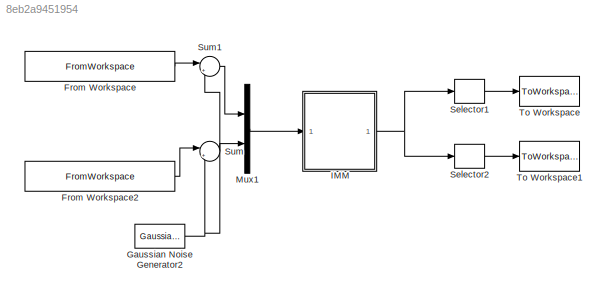
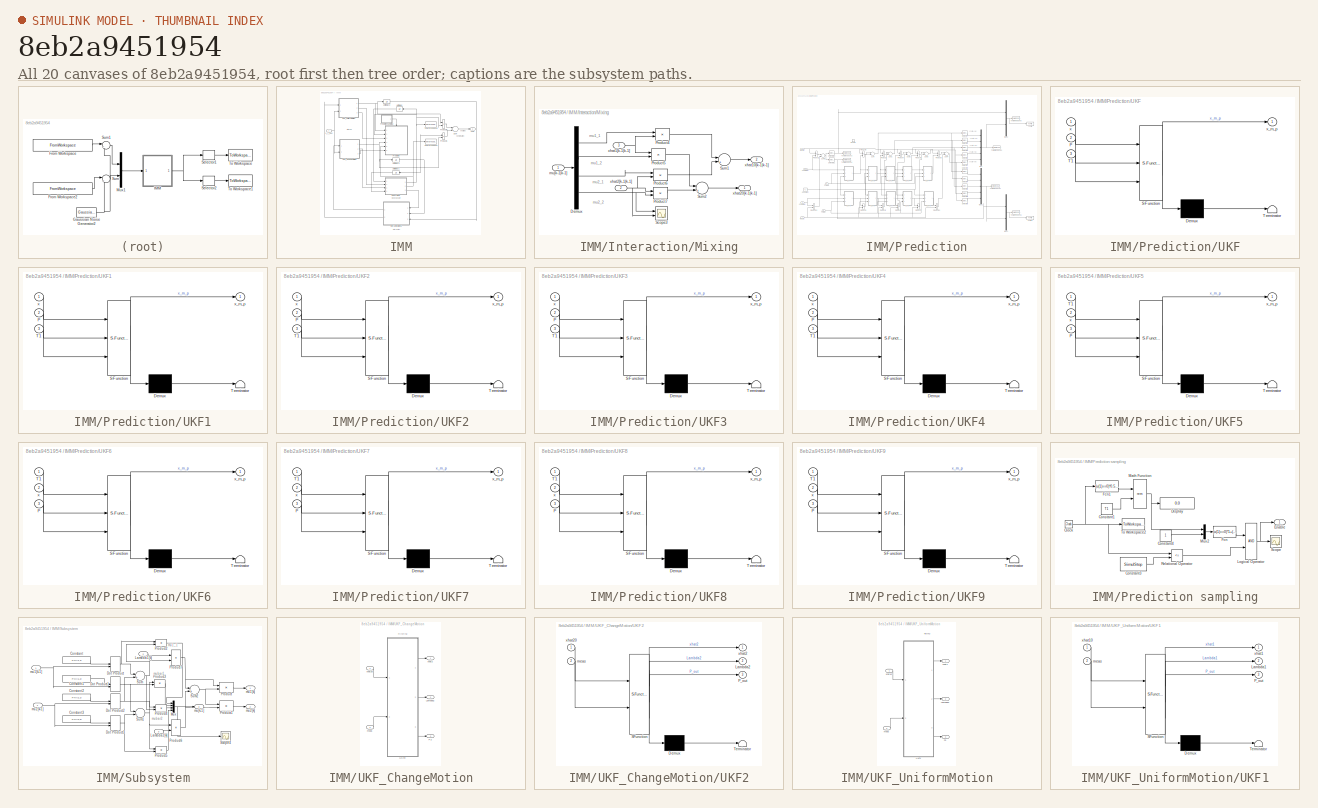
[diagram: thumbnail index - all 20 canvases of the model, root first then tree order]
MODEL slx_8eb2a9451954
KIND model
BLOCK [FromWorkspace] From Workspace
  SampleTime = 0
  VariableName = [obv_traj1(:,1),obv_traj1(:,2)]
BLOCK [FromWorkspace] From Workspace2
  SampleTime = 0
  VariableName = [obv_traj1(:,1),obv_traj1(:,3)]
BLOCK [Reference] Gaussian Noise Generator2  REF=commnoisgen2/Gaussian Noise
Generator
  Ports = [0, 1]
  SourceBlock = commnoisgen2/Gaussian Noise\nGenerator
  SourceType = Gaussian Noise Generator
  Ts = T
  d = noise
  frameBased = off
  m = 0
  orient = off
  outDataType = double
  s = 0
  sampPerFrame = 1
BLOCK [SubSystem] IMM
  FunctionWithSeparateData = off
  MaskHideContents = off
  MinAlgLoopOccurrences = off
  Opaque = off
  Ports = [1, 1]
  PropExecContextOutsideSubsystem = off
  RTWSystemCode = Auto
  RequestExecContextInheritance = off
BLOCK [SubSystem] IMM/Interaction//Mixing
  FunctionWithSeparateData = off
  MaskHideContents = off
  MinAlgLoopOccurrences = off
  Opaque = off
  Ports = [3, 2]
  PropExecContextOutsideSubsystem = off
  RTWSystemCode = Auto
  RequestExecContextInheritance = off
BLOCK [Demux] IMM/Interaction//Mixing/Demux
  Ports = [1, 4]
BLOCK [Product] IMM/Interaction//Mixing/Product4
  InputSameDT = off
  Ports = [2, 1]
  RndMeth = Floor
BLOCK [Product] IMM/Interaction//Mixing/Product5
  InputSameDT = off
  Ports = [2, 1]
  RndMeth = Floor
BLOCK [Product] IMM/Interaction//Mixing/Product6
  InputSameDT = off
  Ports = [2, 1]
  RndMeth = Floor
BLOCK [Product] IMM/Interaction//Mixing/Product7
  InputSameDT = off
  Ports = [2, 1]
  RndMeth = Floor
BLOCK [Scope] IMM/Interaction//Mixing/Scope3
  DataFormat = StructureWithTime
  Floating = off
  NumInputPorts = 2
  Ports = [2]
  SampleTime = 0
  SaveName = ScopeData7
  ShowLegends = off
  TimeRange = 10
  YMax = 5~5
  YMin = -5~-5
BLOCK [Sum] IMM/Interaction//Mixing/Sum1
  IconShape = round
  InputSameDT = off
  Inputs = |++|
  OutDataTypeStr = Inherit: Inherit via internal rule
  Ports = [2, 1]
BLOCK [Sum] IMM/Interaction//Mixing/Sum2
  IconShape = round
  InputSameDT = off
  Inputs = |++|
  OutDataTypeStr = Inherit: Inherit via internal rule
  Ports = [2, 1]
BLOCK [Inport] IMM/Interaction//Mixing/mu[k-1|k-1]
  IconDisplay = Port number
BLOCK [Outport] IMM/Interaction//Mixing/xhat10[k-1|k-1]
  IconDisplay = Port number
  Port = 2
BLOCK [Inport] IMM/Interaction//Mixing/xhat1[k-1|k-1]
  IconDisplay = Port number
  Port = 3
BLOCK [Outport] IMM/Interaction//Mixing/xhat20[k-1|k-1]
  IconDisplay = Port number
BLOCK [Inport] IMM/Interaction//Mixing/xhat2[k-1|k-1]
  IconDisplay = Port number
  Port = 2
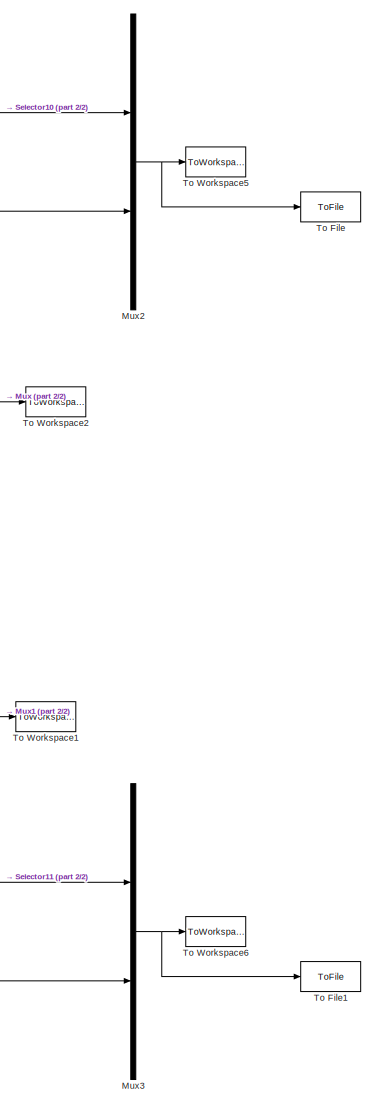
[diagram: IMM/Prediction - part 1/2, right side, full height]
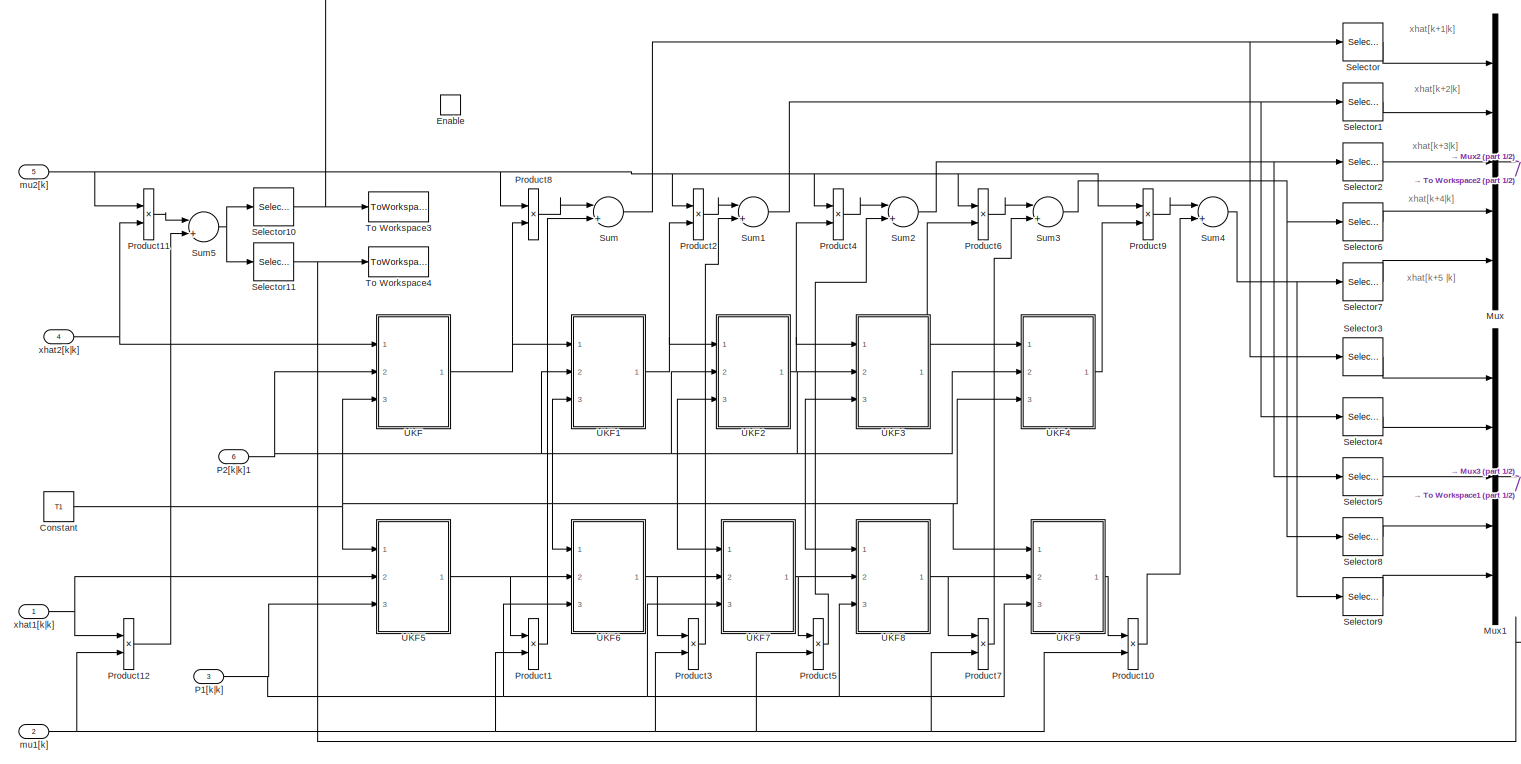
[diagram: IMM/Prediction - part 2/2, full width, middle band]
BLOCK [SubSystem] IMM/Prediction
  FunctionWithSeparateData = off
  MaskHideContents = off
  MinAlgLoopOccurrences = off
  Opaque = off
  Ports = [6, 0, 1]
  PropExecContextOutsideSubsystem = off
  RTWSystemCode = Auto
  RequestExecContextInheritance = off
BLOCK [SubSystem] IMM/Prediction sampling
  FunctionWithSeparateData = off
  MaskHideContents = off
  MinAlgLoopOccurrences = off
  Opaque = off
  Ports = [0, 1]
  PropExecContextOutsideSubsystem = off
  RTWSystemCode = Auto
  RequestExecContextInheritance = off
BLOCK [Clock] IMM/Prediction sampling/Clock
BLOCK [Constant] IMM/Prediction sampling/Constant1
  Value = T1
BLOCK [Constant] IMM/Prediction sampling/Constant3
  Value = SimulStop
BLOCK [Constant] IMM/Prediction sampling/Constant4
BLOCK [Display] IMM/Prediction sampling/Display
  Decimation = 1
  Lockdown = off
  Ports = [1]
BLOCK [Outport] IMM/Prediction sampling/Enable
  IconDisplay = Port number
BLOCK [Fcn] IMM/Prediction sampling/Fcn
  Expr = (u(1)==0)*1+(!u(1)==0)*0
BLOCK [Fcn] IMM/Prediction sampling/Fcn1
  Expr = (u(1)==0)*0.5+(!u(1)==0)*u(1)
BLOCK [Logic] IMM/Prediction sampling/Logical Operator
  AllPortsSameDT = off
  OutDataTypeStr = boolean
  Ports = [2, 1]
BLOCK [Math] IMM/Prediction sampling/Math Function
  Operator = rem
  Ports = [2, 1]
BLOCK [Mux] IMM/Prediction sampling/Mux2
  DisplayOption = bar
  Inputs = 2
  Ports = [2, 1]
BLOCK [RelationalOperator] IMM/Prediction sampling/Relational Operator
  InputSameDT = off
  Operator = <=
  OutDataTypeStr = boolean
  Ports = [2, 1]
BLOCK [Scope] IMM/Prediction sampling/Scope
  DataFormat = StructureWithTime
  Floating = off
  NumInputPorts = 1
  Ports = [1]
  SampleTime = 0
  SaveName = ScopeData2
  ShowLegends = off
BLOCK [ToWorkspace] IMM/Prediction sampling/To Workspace2
  MaxDataPoints = inf
  Ports = [1]
  SampleTime = -1
  VariableName = time
BLOCK [Constant] IMM/Prediction/Constant
  Value = T1
BLOCK [EnablePort] IMM/Prediction/Enable
  Ports = []
BLOCK [Mux] IMM/Prediction/Mux
  DisplayOption = bar
  Inputs = 5
  Ports = [5, 1]
BLOCK [Mux] IMM/Prediction/Mux1
  DisplayOption = bar
  Inputs = 5
  Ports = [5, 1]
BLOCK [Mux] IMM/Prediction/Mux2
  DisplayOption = bar
  Inputs = 2
  Ports = [2, 1]
BLOCK [Mux] IMM/Prediction/Mux3
  DisplayOption = bar
  Inputs = 2
  Ports = [2, 1]
BLOCK [Inport] IMM/Prediction/P1[k|k]
  IconDisplay = Port number
  Port = 3
BLOCK [Inport] IMM/Prediction/P2[k|k]1
  IconDisplay = Port number
  Port = 6
BLOCK [Product] IMM/Prediction/Product1
  InputSameDT = off
  Ports = [2, 1]
  RndMeth = Floor
BLOCK [Product] IMM/Prediction/Product10
  InputSameDT = off
  Ports = [2, 1]
  RndMeth = Floor
BLOCK [Product] IMM/Prediction/Product11
  InputSameDT = off
  Ports = [2, 1]
  RndMeth = Floor
BLOCK [Product] IMM/Prediction/Product12
  InputSameDT = off
  Ports = [2, 1]
  RndMeth = Floor
BLOCK [Product] IMM/Prediction/Product2
  InputSameDT = off
  Ports = [2, 1]
  RndMeth = Floor
BLOCK [Product] IMM/Prediction/Product3
  InputSameDT = off
  Ports = [2, 1]
  RndMeth = Floor
BLOCK [Product] IMM/Prediction/Product4
  InputSameDT = off
  Ports = [2, 1]
  RndMeth = Floor
BLOCK [Product] IMM/Prediction/Product5
  InputSameDT = off
  Ports = [2, 1]
  RndMeth = Floor
BLOCK [Product] IMM/Prediction/Product6
  InputSameDT = off
  Ports = [2, 1]
  RndMeth = Floor
BLOCK [Product] IMM/Prediction/Product7
  InputSameDT = off
  Ports = [2, 1]
  RndMeth = Floor
BLOCK [Product] IMM/Prediction/Product8
  InputSameDT = off
  Ports = [2, 1]
  RndMeth = Floor
BLOCK [Product] IMM/Prediction/Product9
  InputSameDT = off
  Ports = [2, 1]
  RndMeth = Floor
BLOCK [Selector] IMM/Prediction/Selector
  IndexOptions = Index vector (dialog)
  Indices = [1]
  InputPortWidth = 5
  OutputSizes = 1
  Ports = [1, 1]
BLOCK [Selector] IMM/Prediction/Selector1
  IndexOptions = Index vector (dialog)
  Indices = [1]
  InputPortWidth = 5
  OutputSizes = 1
  Ports = [1, 1]
BLOCK [Selector] IMM/Prediction/Selector10
  IndexOptions = Index vector (dialog)
  Indices = [1]
  InputPortWidth = 5
  OutputSizes = 1
  Ports = [1, 1]
BLOCK [Selector] IMM/Prediction/Selector11
  IndexOptions = Index vector (dialog)
  Indices = [3]
  InputPortWidth = 5
  OutputSizes = 1
  Ports = [1, 1]
BLOCK [Selector] IMM/Prediction/Selector2
  IndexOptions = Index vector (dialog)
  Indices = [1]
  InputPortWidth = 5
  OutputSizes = 1
  Ports = [1, 1]
BLOCK [Selector] IMM/Prediction/Selector3
  IndexOptions = Index vector (dialog)
  Indices = [3]
  InputPortWidth = 5
  OutputSizes = 1
  Ports = [1, 1]
BLOCK [Selector] IMM/Prediction/Selector4
  IndexOptions = Index vector (dialog)
  Indices = [3]
  InputPortWidth = 5
  OutputSizes = 1
  Ports = [1, 1]
BLOCK [Selector] IMM/Prediction/Selector5
  IndexOptions = Index vector (dialog)
  Indices = [3]
  InputPortWidth = 5
  OutputSizes = 1
  Ports = [1, 1]
BLOCK [Selector] IMM/Prediction/Selector6
  IndexOptions = Index vector (dialog)
  Indices = [1]
  InputPortWidth = 5
  OutputSizes = 1
  Ports = [1, 1]
BLOCK [Selector] IMM/Prediction/Selector7
  IndexOptions = Index vector (dialog)
  Indices = [1]
  InputPortWidth = 5
  OutputSizes = 1
  Ports = [1, 1]
BLOCK [Selector] IMM/Prediction/Selector8
  IndexOptions = Index vector (dialog)
  Indices = [3]
  InputPortWidth = 5
  OutputSizes = 1
  Ports = [1, 1]
BLOCK [Selector] IMM/Prediction/Selector9
  IndexOptions = Index vector (dialog)
  Indices = [3]
  InputPortWidth = 5
  OutputSizes = 1
  Ports = [1, 1]
BLOCK [Sum] IMM/Prediction/Sum
  IconShape = round
  InputSameDT = off
  Inputs = |++|
  OutDataTypeStr = Inherit: Inherit via internal rule
  Ports = [2, 1]
BLOCK [Sum] IMM/Prediction/Sum1
  IconShape = round
  InputSameDT = off
  Inputs = |++|
  OutDataTypeStr = Inherit: Inherit via internal rule
  Ports = [2, 1]
BLOCK [Sum] IMM/Prediction/Sum2
  IconShape = round
  InputSameDT = off
  Inputs = |++|
  OutDataTypeStr = Inherit: Inherit via internal rule
  Ports = [2, 1]
BLOCK [Sum] IMM/Prediction/Sum3
  IconShape = round
  InputSameDT = off
  Inputs = |++|
  OutDataTypeStr = Inherit: Inherit via internal rule
  Ports = [2, 1]
BLOCK [Sum] IMM/Prediction/Sum4
  IconShape = round
  InputSameDT = off
  Inputs = |++|
  OutDataTypeStr = Inherit: Inherit via internal rule
  Ports = [2, 1]
BLOCK [Sum] IMM/Prediction/Sum5
  IconShape = round
  InputSameDT = off
  Inputs = |++|
  OutDataTypeStr = Inherit: Inherit via internal rule
  Ports = [2, 1]
BLOCK [ToFile] IMM/Prediction/To File
  Filename = x_pos_pre_imm.mat
  MatrixName = x_pos_pre_imm
  Ports = [1]
BLOCK [ToFile] IMM/Prediction/To File1
  Filename = y_pos_pre_imm.mat
  MatrixName = y_pos_pre_imm
  Ports = [1]
BLOCK [ToWorkspace] IMM/Prediction/To Workspace1
  MaxDataPoints = inf
  Ports = [1]
  SampleTime = -1
  VariableName = y_pos_pre
BLOCK [ToWorkspace] IMM/Prediction/To Workspace2
  MaxDataPoints = inf
  Ports = [1]
  SampleTime = -1
  VariableName = x_pos_pre
BLOCK [ToWorkspace] IMM/Prediction/To Workspace3
  MaxDataPoints = inf
  Ports = [1]
  SampleTime = -1
  VariableName = x_pos_est
BLOCK [ToWorkspace] IMM/Prediction/To Workspace4
  MaxDataPoints = inf
  Ports = [1]
  SampleTime = -1
  VariableName = y_pos_est
BLOCK [ToWorkspace] IMM/Prediction/To Workspace5
  MaxDataPoints = inf
  Ports = [1]
  SampleTime = -1
  VariableName = x_pos_pre1
BLOCK [ToWorkspace] IMM/Prediction/To Workspace6
  MaxDataPoints = inf
  Ports = [1]
  SampleTime = -1
  VariableName = x_pos_pre2
BLOCK [SubSystem] IMM/Prediction/UKF
  ErrorFcn = Stateflow.Translate.translate
  FunctionWithSeparateData = off
  MaskHideContents = off
  MinAlgLoopOccurrences = off
  Opaque = off
  PermitHierarchicalResolution = ExplicitOnly
  Ports = [3, 1]
  PropExecContextOutsideSubsystem = off
  RTWSystemCode = Auto
  RequestExecContextInheritance = off
  SFBlockType = MATLAB Function
  TreatAsAtomicUnit = on
BLOCK [Demux] IMM/Prediction/UKF/ Demux 
  Outputs = 1
  Ports = [1, 1]
BLOCK [S-Function] IMM/Prediction/UKF/ SFunction 
  EnableBusSupport = on
  FunctionName = sf_sfun
  PortCounts = [3 2]
  Ports = [3, 2]
  Tag = Stateflow S-Function IMM_UKF 8
BLOCK [Terminator] IMM/Prediction/UKF/ Terminator 
BLOCK [Inport] IMM/Prediction/UKF/P
  IconDisplay = Port number
  Port = 2
BLOCK [Inport] IMM/Prediction/UKF/T1
  IconDisplay = Port number
  Port = 3
BLOCK [Inport] IMM/Prediction/UKF/x
  IconDisplay = Port number
BLOCK [Outport] IMM/Prediction/UKF/x_m_p
  IconDisplay = Port number
BLOCK [SubSystem] IMM/Prediction/UKF1
  ErrorFcn = Stateflow.Translate.translate
  FunctionWithSeparateData = off
  MaskHideContents = off
  MinAlgLoopOccurrences = off
  Opaque = off
  PermitHierarchicalResolution = ExplicitOnly
  Ports = [3, 1]
  PropExecContextOutsideSubsystem = off
  RTWSystemCode = Auto
  RequestExecContextInheritance = off
  SFBlockType = MATLAB Function
  TreatAsAtomicUnit = on
BLOCK [Demux] IMM/Prediction/UKF1/ Demux 
  Outputs = 1
  Ports = [1, 1]
BLOCK [S-Function] IMM/Prediction/UKF1/ SFunction 
  EnableBusSupport = on
  FunctionName = sf_sfun
  PortCounts = [3 2]
  Ports = [3, 2]
  Tag = Stateflow S-Function IMM_UKF 9
BLOCK [Terminator] IMM/Prediction/UKF1/ Terminator 
BLOCK [Inport] IMM/Prediction/UKF1/P
  IconDisplay = Port number
  Port = 2
BLOCK [Inport] IMM/Prediction/UKF1/T1
  IconDisplay = Port number
  Port = 3
BLOCK [Inport] IMM/Prediction/UKF1/x
  IconDisplay = Port number
BLOCK [Outport] IMM/Prediction/UKF1/x_m_p
  IconDisplay = Port number
BLOCK [SubSystem] IMM/Prediction/UKF2
  ErrorFcn = Stateflow.Translate.translate
  FunctionWithSeparateData = off
  MaskHideContents = off
  MinAlgLoopOccurrences = off
  Opaque = off
  PermitHierarchicalResolution = ExplicitOnly
  Ports = [3, 1]
  PropExecContextOutsideSubsystem = off
  RTWSystemCode = Auto
  RequestExecContextInheritance = off
  SFBlockType = MATLAB Function
  TreatAsAtomicUnit = on
BLOCK [Demux] IMM/Prediction/UKF2/ Demux 
  Outputs = 1
  Ports = [1, 1]
BLOCK [S-Function] IMM/Prediction/UKF2/ SFunction 
  EnableBusSupport = on
  FunctionName = sf_sfun
  PortCounts = [3 2]
  Ports = [3, 2]
  Tag = Stateflow S-Function IMM_UKF 10
BLOCK [Terminator] IMM/Prediction/UKF2/ Terminator 
BLOCK [Inport] IMM/Prediction/UKF2/P
  IconDisplay = Port number
  Port = 2
BLOCK [Inport] IMM/Prediction/UKF2/T1
  IconDisplay = Port number
  Port = 3
BLOCK [Inport] IMM/Prediction/UKF2/x
  IconDisplay = Port number
BLOCK [Outport] IMM/Prediction/UKF2/x_m_p
  IconDisplay = Port number
BLOCK [SubSystem] IMM/Prediction/UKF3
  ErrorFcn = Stateflow.Translate.translate
  FunctionWithSeparateData = off
  MaskHideContents = off
  MinAlgLoopOccurrences = off
  Opaque = off
  PermitHierarchicalResolution = ExplicitOnly
  Ports = [3, 1]
  PropExecContextOutsideSubsystem = off
  RTWSystemCode = Auto
  RequestExecContextInheritance = off
  SFBlockType = MATLAB Function
  TreatAsAtomicUnit = on
BLOCK [Demux] IMM/Prediction/UKF3/ Demux 
  Outputs = 1
  Ports = [1, 1]
BLOCK [S-Function] IMM/Prediction/UKF3/ SFunction 
  EnableBusSupport = on
  FunctionName = sf_sfun
  PortCounts = [3 2]
  Ports = [3, 2]
  Tag = Stateflow S-Function IMM_UKF 11
BLOCK [Terminator] IMM/Prediction/UKF3/ Terminator 
BLOCK [Inport] IMM/Prediction/UKF3/P
  IconDisplay = Port number
  Port = 2
BLOCK [Inport] IMM/Prediction/UKF3/T1
  IconDisplay = Port number
  Port = 3
BLOCK [Inport] IMM/Prediction/UKF3/x
  IconDisplay = Port number
BLOCK [Outport] IMM/Prediction/UKF3/x_m_p
  IconDisplay = Port number
BLOCK [SubSystem] IMM/Prediction/UKF4
  ErrorFcn = Stateflow.Translate.translate
  FunctionWithSeparateData = off
  MaskHideContents = off
  MinAlgLoopOccurrences = off
  Opaque = off
  PermitHierarchicalResolution = ExplicitOnly
  Ports = [3, 1]
  PropExecContextOutsideSubsystem = off
  RTWSystemCode = Auto
  RequestExecContextInheritance = off
  SFBlockType = MATLAB Function
  TreatAsAtomicUnit = on
BLOCK [Demux] IMM/Prediction/UKF4/ Demux 
  Outputs = 1
  Ports = [1, 1]
BLOCK [S-Function] IMM/Prediction/UKF4/ SFunction 
  EnableBusSupport = on
  FunctionName = sf_sfun
  PortCounts = [3 2]
  Ports = [3, 2]
  Tag = Stateflow S-Function IMM_UKF 12
BLOCK [Terminator] IMM/Prediction/UKF4/ Terminator 
BLOCK [Inport] IMM/Prediction/UKF4/P
  IconDisplay = Port number
  Port = 2
BLOCK [Inport] IMM/Prediction/UKF4/T1
  IconDisplay = Port number
  Port = 3
BLOCK [Inport] IMM/Prediction/UKF4/x
  IconDisplay = Port number
BLOCK [Outport] IMM/Prediction/UKF4/x_m_p
  IconDisplay = Port number
BLOCK [SubSystem] IMM/Prediction/UKF5
  ErrorFcn = Stateflow.Translate.translate
  FunctionWithSeparateData = off
  MaskHideContents = off
  MinAlgLoopOccurrences = off
  Opaque = off
  PermitHierarchicalResolution = ExplicitOnly
  Ports = [3, 1]
  PropExecContextOutsideSubsystem = off
  RTWSystemCode = Auto
  RequestExecContextInheritance = off
  SFBlockType = MATLAB Function
  TreatAsAtomicUnit = on
BLOCK [Demux] IMM/Prediction/UKF5/ Demux 
  Outputs = 1
  Ports = [1, 1]
BLOCK [S-Function] IMM/Prediction/UKF5/ SFunction 
  EnableBusSupport = on
  FunctionName = sf_sfun
  PortCounts = [3 2]
  Ports = [3, 2]
  Tag = Stateflow S-Function IMM_UKF 14
BLOCK [Terminator] IMM/Prediction/UKF5/ Terminator 
BLOCK [Inport] IMM/Prediction/UKF5/P
  IconDisplay = Port number
  Port = 3
BLOCK [Inport] IMM/Prediction/UKF5/T1
  IconDisplay = Port number
BLOCK [Inport] IMM/Prediction/UKF5/x
  IconDisplay = Port number
  Port = 2
BLOCK [Outport] IMM/Prediction/UKF5/x_m_p
  IconDisplay = Port number
BLOCK [SubSystem] IMM/Prediction/UKF6
  ErrorFcn = Stateflow.Translate.translate
  FunctionWithSeparateData = off
  MaskHideContents = off
  MinAlgLoopOccurrences = off
  Opaque = off
  PermitHierarchicalResolution = ExplicitOnly
  Ports = [3, 1]
  PropExecContextOutsideSubsystem = off
  RTWSystemCode = Auto
  RequestExecContextInheritance = off
  SFBlockType = MATLAB Function
  TreatAsAtomicUnit = on
BLOCK [Demux] IMM/Prediction/UKF6/ Demux 
  Outputs = 1
  Ports = [1, 1]
BLOCK [S-Function] IMM/Prediction/UKF6/ SFunction 
  EnableBusSupport = on
  FunctionName = sf_sfun
  PortCounts = [3 2]
  Ports = [3, 2]
  Tag = Stateflow S-Function IMM_UKF 15
BLOCK [Terminator] IMM/Prediction/UKF6/ Terminator 
BLOCK [Inport] IMM/Prediction/UKF6/P
  IconDisplay = Port number
  Port = 3
BLOCK [Inport] IMM/Prediction/UKF6/T1
  IconDisplay = Port number
BLOCK [Inport] IMM/Prediction/UKF6/x
  IconDisplay = Port number
  Port = 2
BLOCK [Outport] IMM/Prediction/UKF6/x_m_p
  IconDisplay = Port number
BLOCK [SubSystem] IMM/Prediction/UKF7
  ErrorFcn = Stateflow.Translate.translate
  FunctionWithSeparateData = off
  MaskHideContents = off
  MinAlgLoopOccurrences = off
  Opaque = off
  PermitHierarchicalResolution = ExplicitOnly
  Ports = [3, 1]
  PropExecContextOutsideSubsystem = off
  RTWSystemCode = Auto
  RequestExecContextInheritance = off
  SFBlockType = MATLAB Function
  TreatAsAtomicUnit = on
BLOCK [Demux] IMM/Prediction/UKF7/ Demux 
  Outputs = 1
  Ports = [1, 1]
BLOCK [S-Function] IMM/Prediction/UKF7/ SFunction 
  EnableBusSupport = on
  FunctionName = sf_sfun
  PortCounts = [3 2]
  Ports = [3, 2]
  Tag = Stateflow S-Function IMM_UKF 16
BLOCK [Terminator] IMM/Prediction/UKF7/ Terminator 
BLOCK [Inport] IMM/Prediction/UKF7/P
  IconDisplay = Port number
  Port = 3
BLOCK [Inport] IMM/Prediction/UKF7/T1
  IconDisplay = Port number
BLOCK [Inport] IMM/Prediction/UKF7/x
  IconDisplay = Port number
  Port = 2
BLOCK [Outport] IMM/Prediction/UKF7/x_m_p
  IconDisplay = Port number
BLOCK [SubSystem] IMM/Prediction/UKF8
  ErrorFcn = Stateflow.Translate.translate
  FunctionWithSeparateData = off
  MaskHideContents = off
  MinAlgLoopOccurrences = off
  Opaque = off
  PermitHierarchicalResolution = ExplicitOnly
  Ports = [3, 1]
  PropExecContextOutsideSubsystem = off
  RTWSystemCode = Auto
  RequestExecContextInheritance = off
  SFBlockType = MATLAB Function
  TreatAsAtomicUnit = on
BLOCK [Demux] IMM/Prediction/UKF8/ Demux 
  Outputs = 1
  Ports = [1, 1]
BLOCK [S-Function] IMM/Prediction/UKF8/ SFunction 
  EnableBusSupport = on
  FunctionName = sf_sfun
  PortCounts = [3 2]
  Ports = [3, 2]
  Tag = Stateflow S-Function IMM_UKF 17
BLOCK [Terminator] IMM/Prediction/UKF8/ Terminator 
BLOCK [Inport] IMM/Prediction/UKF8/P
  IconDisplay = Port number
  Port = 3
BLOCK [Inport] IMM/Prediction/UKF8/T1
  IconDisplay = Port number
BLOCK [Inport] IMM/Prediction/UKF8/x
  IconDisplay = Port number
  Port = 2
BLOCK [Outport] IMM/Prediction/UKF8/x_m_p
  IconDisplay = Port number
BLOCK [SubSystem] IMM/Prediction/UKF9
  ErrorFcn = Stateflow.Translate.translate
  FunctionWithSeparateData = off
  MaskHideContents = off
  MinAlgLoopOccurrences = off
  Opaque = off
  PermitHierarchicalResolution = ExplicitOnly
  Ports = [3, 1]
  PropExecContextOutsideSubsystem = off
  RTWSystemCode = Auto
  RequestExecContextInheritance = off
  SFBlockType = MATLAB Function
  TreatAsAtomicUnit = on
BLOCK [Demux] IMM/Prediction/UKF9/ Demux 
  Outputs = 1
  Ports = [1, 1]
BLOCK [S-Function] IMM/Prediction/UKF9/ SFunction 
  EnableBusSupport = on
  FunctionName = sf_sfun
  PortCounts = [3 2]
  Ports = [3, 2]
  Tag = Stateflow S-Function IMM_UKF 18
BLOCK [Terminator] IMM/Prediction/UKF9/ Terminator 
BLOCK [Inport] IMM/Prediction/UKF9/P
  IconDisplay = Port number
  Port = 3
BLOCK [Inport] IMM/Prediction/UKF9/T1
  IconDisplay = Port number
BLOCK [Inport] IMM/Prediction/UKF9/x
  IconDisplay = Port number
  Port = 2
BLOCK [Outport] IMM/Prediction/UKF9/x_m_p
  IconDisplay = Port number
BLOCK [Inport] IMM/Prediction/mu1[k] 
  IconDisplay = Port number
  Port = 2
BLOCK [Inport] IMM/Prediction/mu2[k]
  IconDisplay = Port number
  Port = 5
BLOCK [Inport] IMM/Prediction/xhat1[k|k]
  IconDisplay = Port number
BLOCK [Inport] IMM/Prediction/xhat2[k|k]
  IconDisplay = Port number
  Port = 4
BLOCK [Product] IMM/Product1
  InputSameDT = off
  Ports = [2, 1]
  RndMeth = Floor
BLOCK [Product] IMM/Product8
  InputSameDT = off
  Ports = [2, 1]
  RndMeth = Floor
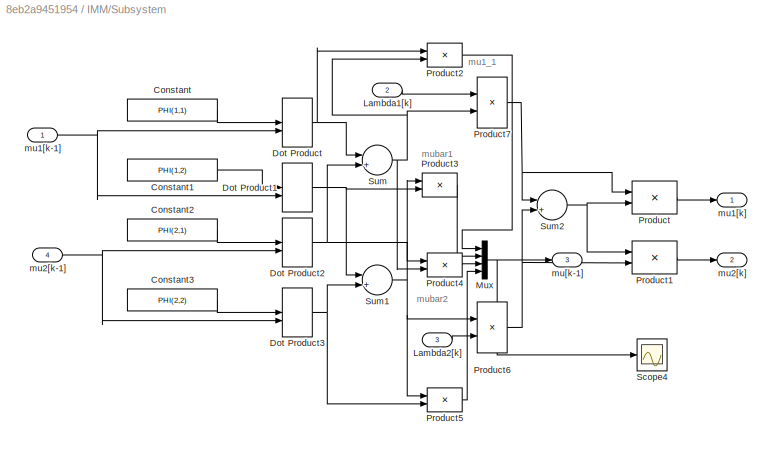
BLOCK [SubSystem] IMM/Subsystem
  FunctionWithSeparateData = off
  MaskHideContents = off
  MinAlgLoopOccurrences = off
  Opaque = off
  Ports = [4, 3]
  PropExecContextOutsideSubsystem = off
  RTWSystemCode = Auto
  RequestExecContextInheritance = off
BLOCK [Constant] IMM/Subsystem/Constant
  Value = PHI(1,1)
BLOCK [Constant] IMM/Subsystem/Constant1
  Value = PHI(1,2)
BLOCK [Constant] IMM/Subsystem/Constant2
  Value = PHI(2,1)
BLOCK [Constant] IMM/Subsystem/Constant3
  Value = PHI(2,2)
BLOCK [DotProduct] IMM/Subsystem/Dot Product
  OutDataTypeStr = Inherit: Inherit via internal rule
BLOCK [DotProduct] IMM/Subsystem/Dot Product1
  OutDataTypeStr = Inherit: Inherit via internal rule
BLOCK [DotProduct] IMM/Subsystem/Dot Product2
  OutDataTypeStr = Inherit: Inherit via internal rule
BLOCK [DotProduct] IMM/Subsystem/Dot Product3
  OutDataTypeStr = Inherit: Inherit via internal rule
BLOCK [Inport] IMM/Subsystem/Lambda1[k]
  IconDisplay = Port number
  Port = 2
BLOCK [Inport] IMM/Subsystem/Lambda2[k]
  IconDisplay = Port number
  Port = 3
BLOCK [Mux] IMM/Subsystem/Mux
  DisplayOption = bar
  Ports = [4, 1]
BLOCK [Product] IMM/Subsystem/Product
  InputSameDT = off
  Inputs = */
  Ports = [2, 1]
  RndMeth = Floor
BLOCK [Product] IMM/Subsystem/Product1
  InputSameDT = off
  Inputs = /*
  Ports = [2, 1]
  RndMeth = Floor
BLOCK [Product] IMM/Subsystem/Product2
  InputSameDT = off
  Inputs = */
  Ports = [2, 1]
  RndMeth = Floor
BLOCK [Product] IMM/Subsystem/Product3
  InputSameDT = off
  Inputs = /*
  Ports = [2, 1]
  RndMeth = Floor
BLOCK [Product] IMM/Subsystem/Product4
  InputSameDT = off
  Inputs = */
  Ports = [2, 1]
  RndMeth = Floor
BLOCK [Product] IMM/Subsystem/Product5
  InputSameDT = off
  Inputs = /*
  Ports = [2, 1]
  RndMeth = Floor
BLOCK [Product] IMM/Subsystem/Product6
  InputSameDT = off
  Ports = [2, 1]
  RndMeth = Floor
BLOCK [Product] IMM/Subsystem/Product7
  InputSameDT = off
  Ports = [2, 1]
  RndMeth = Floor
BLOCK [Scope] IMM/Subsystem/Scope4
  DataFormat = StructureWithTime
  Floating = off
  NumInputPorts = 1
  Ports = [1]
  SaveName = ScopeData31
  ShowLegends = off
  YMax = 1
  YMin = 2.77556e-17
BLOCK [Sum] IMM/Subsystem/Sum
  IconShape = round
  InputSameDT = off
  Inputs = |++|
  OutDataTypeStr = Inherit: Inherit via internal rule
  Ports = [2, 1]
BLOCK [Sum] IMM/Subsystem/Sum1
  IconShape = round
  InputSameDT = off
  Inputs = |++|
  OutDataTypeStr = Inherit: Inherit via internal rule
  Ports = [2, 1]
BLOCK [Sum] IMM/Subsystem/Sum2
  IconShape = round
  InputSameDT = off
  Inputs = |++|
  OutDataTypeStr = Inherit: Inherit via internal rule
  Ports = [2, 1]
BLOCK [Inport] IMM/Subsystem/mu1[k-1]
  IconDisplay = Port number
BLOCK [Outport] IMM/Subsystem/mu1[k]
  IconDisplay = Port number
BLOCK [Inport] IMM/Subsystem/mu2[k-1]
  IconDisplay = Port number
  Port = 4
BLOCK [Outport] IMM/Subsystem/mu2[k]
  IconDisplay = Port number
  Port = 2
BLOCK [Outport] IMM/Subsystem/mu[k-1]
  IconDisplay = Port number
  Port = 3
BLOCK [Sum] IMM/Sum
  IconShape = round
  InputSameDT = off
  Inputs = |++|
  OutDataTypeStr = Inherit: Inherit via internal rule
  Ports = [2, 1]
BLOCK [ToWorkspace] IMM/To Workspace1
  MaxDataPoints = inf
  Ports = [1]
  SampleTime = -1
  VariableName = mode_prob2
BLOCK [ToWorkspace] IMM/To Workspace3
  MaxDataPoints = inf
  Ports = [1]
  SampleTime = -1
  VariableName = mode_prob1
BLOCK [SubSystem] IMM/UKF_ChangeMotion
  FunctionWithSeparateData = off
  MaskHideContents = off
  MinAlgLoopOccurrences = off
  Opaque = off
  Ports = [2, 3]
  PropExecContextOutsideSubsystem = off
  RTWSystemCode = Auto
  RequestExecContextInheritance = off
BLOCK [Outport] IMM/UKF_ChangeMotion/Lambda2
  IconDisplay = Port number
  Port = 2
BLOCK [Outport] IMM/UKF_ChangeMotion/P2
  IconDisplay = Port number
  Port = 3
BLOCK [SubSystem] IMM/UKF_ChangeMotion/UKF2
  ErrorFcn = Stateflow.Translate.translate
  FunctionWithSeparateData = off
  MaskHideContents = off
  MinAlgLoopOccurrences = off
  Opaque = off
  PermitHierarchicalResolution = ExplicitOnly
  Ports = [2, 3]
  PropExecContextOutsideSubsystem = off
  RTWSystemCode = Auto
  RequestExecContextInheritance = off
  SFBlockType = MATLAB Function
  TreatAsAtomicUnit = on
BLOCK [Demux] IMM/UKF_ChangeMotion/UKF2/ Demux 
  Outputs = 1
  Ports = [1, 1]
BLOCK [S-Function] IMM/UKF_ChangeMotion/UKF2/ SFunction 
  EnableBusSupport = on
  FunctionName = sf_sfun
  PortCounts = [2 4]
  Ports = [2, 4]
  Tag = Stateflow S-Function IMM_UKF 13
BLOCK [Terminator] IMM/UKF_ChangeMotion/UKF2/ Terminator 
BLOCK [Outport] IMM/UKF_ChangeMotion/UKF2/Lambda2
  IconDisplay = Port number
  Port = 2
BLOCK [Outport] IMM/UKF_ChangeMotion/UKF2/P_out
  IconDisplay = Port number
  Port = 3
BLOCK [Inport] IMM/UKF_ChangeMotion/UKF2/meas
  IconDisplay = Port number
  Port = 2
BLOCK [Outport] IMM/UKF_ChangeMotion/UKF2/xhat2
  IconDisplay = Port number
BLOCK [Inport] IMM/UKF_ChangeMotion/UKF2/xhat20
  IconDisplay = Port number
BLOCK [Inport] IMM/UKF_ChangeMotion/meas
  IconDisplay = Port number
  Port = 2
BLOCK [Outport] IMM/UKF_ChangeMotion/xhat2
  IconDisplay = Port number
BLOCK [Inport] IMM/UKF_ChangeMotion/xhat20
  IconDisplay = Port number
BLOCK [SubSystem] IMM/UKF_UniformMotion
  FunctionWithSeparateData = off
  MaskHideContents = off
  MinAlgLoopOccurrences = off
  Opaque = off
  Ports = [2, 3]
  PropExecContextOutsideSubsystem = off
  RTWSystemCode = Auto
  RequestExecContextInheritance = off
BLOCK [Outport] IMM/UKF_UniformMotion/Lambda1
  IconDisplay = Port number
  Port = 2
BLOCK [Outport] IMM/UKF_UniformMotion/P1
  IconDisplay = Port number
  Port = 3
BLOCK [SubSystem] IMM/UKF_UniformMotion/UKF1
  ErrorFcn = Stateflow.Translate.translate
  FunctionWithSeparateData = off
  MaskHideContents = off
  MinAlgLoopOccurrences = off
  Opaque = off
  PermitHierarchicalResolution = ExplicitOnly
  Ports = [2, 3]
  PropExecContextOutsideSubsystem = off
  RTWSystemCode = Auto
  RequestExecContextInheritance = off
  SFBlockType = MATLAB Function
  TreatAsAtomicUnit = on
BLOCK [Demux] IMM/UKF_UniformMotion/UKF1/ Demux 
  Outputs = 1
  Ports = [1, 1]
BLOCK [S-Function] IMM/UKF_UniformMotion/UKF1/ SFunction 
  EnableBusSupport = on
  FunctionName = sf_sfun
  PortCounts = [2 4]
  Ports = [2, 4]
  Tag = Stateflow S-Function IMM_UKF 2
BLOCK [Terminator] IMM/UKF_UniformMotion/UKF1/ Terminator 
BLOCK [Outport] IMM/UKF_UniformMotion/UKF1/Lambda1
  IconDisplay = Port number
  Port = 2
BLOCK [Outport] IMM/UKF_UniformMotion/UKF1/P_out
  IconDisplay = Port number
  Port = 3
BLOCK [Inport] IMM/UKF_UniformMotion/UKF1/meas
  IconDisplay = Port number
  Port = 2
BLOCK [Outport] IMM/UKF_UniformMotion/UKF1/xhat1
  IconDisplay = Port number
BLOCK [Inport] IMM/UKF_UniformMotion/UKF1/xhat10
  IconDisplay = Port number
BLOCK [Inport] IMM/UKF_UniformMotion/meas
  IconDisplay = Port number
  Port = 2
BLOCK [Outport] IMM/UKF_UniformMotion/xhat1
  IconDisplay = Port number
BLOCK [Inport] IMM/UKF_UniformMotion/xhat10
  IconDisplay = Port number
BLOCK [UnitDelay] IMM/Unit Delay
  InitialCondition = mu1_init
  SampleTime = -1
BLOCK [UnitDelay] IMM/Unit Delay1
  InitialCondition = mu2_init
  SampleTime = -1
BLOCK [UnitDelay] IMM/Unit Delay2
  InitialCondition = xhat_init
  SampleTime = -1
BLOCK [UnitDelay] IMM/Unit Delay3
  InitialCondition = xhat_init
  SampleTime = -1
BLOCK [Inport] IMM/x_y_pos
  IconDisplay = Port number
BLOCK [Outport] IMM/xhat
  IconDisplay = Port number
BLOCK [Mux] Mux1
  DisplayOption = bar
  Inputs = 2
  Ports = [2, 1]
BLOCK [Selector] Selector1
  IndexOptions = Index vector (dialog)
  Indices = [1 2]
  InputPortWidth = 5
  OutputSizes = 1
  Ports = [1, 1]
BLOCK [Selector] Selector2
  IndexOptions = Index vector (dialog)
  Indices = [3 4]
  InputPortWidth = 5
  OutputSizes = 1
  Ports = [1, 1]
BLOCK [Sum] Sum
  IconShape = round
  InputSameDT = off
  Inputs = |++
  OutDataTypeStr = Inherit: Inherit via internal rule
  Ports = [2, 1]
  SaturateOnIntegerOverflow = off
BLOCK [Sum] Sum1
  IconShape = round
  InputSameDT = off
  Inputs = |++
  OutDataTypeStr = Inherit: Inherit via internal rule
  Ports = [2, 1]
  SaturateOnIntegerOverflow = off
BLOCK [ToWorkspace] To Workspace
  MaxDataPoints = inf
  Ports = [1]
  SampleTime = -1
  VariableName = x_est
BLOCK [ToWorkspace] To Workspace1
  MaxDataPoints = inf
  Ports = [1]
  SampleTime = -1
  VariableName = y_est
ANNOTATION IMM: Combination
ANNOTATION IMM: Filtering
ANNOTATION IMM: Interaction
ANNOTATION IMM: Mode Update
ANNOTATION IMM: xhat[k|k]
ANNOTATION IMM/Interaction//Mixing: mu1_1
ANNOTATION IMM/Interaction//Mixing: mu1_2
ANNOTATION IMM/Interaction//Mixing: mu2_1
ANNOTATION IMM/Interaction//Mixing: mu2_2
ANNOTATION IMM/Prediction: xhat[k+1|k]
ANNOTATION IMM/Prediction: xhat[k+2|k]
ANNOTATION IMM/Prediction: xhat[k+3|k]
ANNOTATION IMM/Prediction: xhat[k+4|k]
ANNOTATION IMM/Prediction: xhat[k+5 |k]
ANNOTATION IMM/Subsystem: mu1_1
ANNOTATION IMM/Subsystem: mubar1
ANNOTATION IMM/Subsystem: mubar2
ANNOTATION IMM/UKF_ChangeMotion: Filtering
ANNOTATION IMM/UKF_UniformMotion: Filtering
LINE From Workspace2:1 -> Sum:1
LINE From Workspace:1 -> Sum1:1
NET Gaussian Noise Generator2:1 -> Sum1:2, Sum:2
LINE IMM/Interaction//Mixing/Demux:1 -> IMM/Interaction//Mixing/Product4:1
LINE IMM/Interaction//Mixing/Demux:2 -> IMM/Interaction//Mixing/Product5:2
LINE IMM/Interaction//Mixing/Demux:3 -> IMM/Interaction//Mixing/Product6:1
NET IMM/Interaction//Mixing/Demux:4 -> IMM/Interaction//Mixing/Product7:2, IMM/Interaction//Mixing/Scope3:1
LINE IMM/Interaction//Mixing/Product4:1 -> IMM/Interaction//Mixing/Sum1:1
LINE IMM/Interaction//Mixing/Product5:1 -> IMM/Interaction//Mixing/Sum2:1
LINE IMM/Interaction//Mixing/Product6:1 -> IMM/Interaction//Mixing/Sum1:2
LINE IMM/Interaction//Mixing/Product7:1 -> IMM/Interaction//Mixing/Sum2:2
LINE IMM/Interaction//Mixing/Sum1:1 -> IMM/Interaction//Mixing/xhat10[k-1|k-1]:1
LINE IMM/Interaction//Mixing/Sum2:1 -> IMM/Interaction//Mixing/xhat20[k-1|k-1]:1
LINE IMM/Interaction//Mixing/mu[k-1|k-1]:1 -> IMM/Interaction//Mixing/Demux:1
NET IMM/Interaction//Mixing/xhat1[k-1|k-1]:1 -> IMM/Interaction//Mixing/Product4:2, IMM/Interaction//Mixing/Product5:1
NET IMM/Interaction//Mixing/xhat2[k-1|k-1]:1 -> IMM/Interaction//Mixing/Product6:2, IMM/Interaction//Mixing/Product7:1, IMM/Interaction//Mixing/Scope3:2
LINE IMM/Interaction//Mixing:1 -> IMM/UKF_ChangeMotion:1
LINE IMM/Interaction//Mixing:2 -> IMM/UKF_UniformMotion:1
NET IMM/Prediction sampling/Clock:1 -> IMM/Prediction sampling/Fcn1:1, IMM/Prediction sampling/Relational Operator:1, IMM/Prediction sampling/To Workspace2:1
LINE IMM/Prediction sampling/Constant1:1 -> IMM/Prediction sampling/Math Function:2
LINE IMM/Prediction sampling/Constant3:1 -> IMM/Prediction sampling/Relational Operator:2
LINE IMM/Prediction sampling/Constant4:1 -> IMM/Prediction sampling/Mux2:2
LINE IMM/Prediction sampling/Fcn1:1 -> IMM/Prediction sampling/Math Function:1
LINE IMM/Prediction sampling/Fcn:1 -> IMM/Prediction sampling/Logical Operator:1
NET IMM/Prediction sampling/Logical Operator:1 -> IMM/Prediction sampling/Enable:1, IMM/Prediction sampling/Scope:1
NET IMM/Prediction sampling/Math Function:1 -> IMM/Prediction sampling/Display:1, IMM/Prediction sampling/Mux2:1
LINE IMM/Prediction sampling/Mux2:1 -> IMM/Prediction sampling/Fcn:1
LINE IMM/Prediction sampling/Relational Operator:1 -> IMM/Prediction sampling/Logical Operator:2
LINE IMM/Prediction sampling:1 -> IMM/Prediction:enable
NET IMM/Prediction/Constant:1 -> IMM/Prediction/UKF1:3, IMM/Prediction/UKF2:3, IMM/Prediction/UKF3:3, IMM/Prediction/UKF4:3, IMM/Prediction/UKF5:1, IMM/Prediction/UKF6:1, IMM/Prediction/UKF7:1, IMM/Prediction/UKF8:1, IMM/Prediction/UKF9:1, IMM/Prediction/UKF:3
NET IMM/Prediction/Mux1:1 -> IMM/Prediction/Mux3:2, IMM/Prediction/To Workspace1:1
NET IMM/Prediction/Mux2:1 -> IMM/Prediction/To File:1, IMM/Prediction/To Workspace5:1
NET IMM/Prediction/Mux3:1 -> IMM/Prediction/To File1:1, IMM/Prediction/To Workspace6:1
NET IMM/Prediction/Mux:1 -> IMM/Prediction/Mux2:2, IMM/Prediction/To Workspace2:1
NET IMM/Prediction/P1[k|k]:1 -> IMM/Prediction/UKF5:3, IMM/Prediction/UKF6:3, IMM/Prediction/UKF7:3, IMM/Prediction/UKF8:3, IMM/Prediction/UKF9:3
NET IMM/Prediction/P2[k|k]1:1 -> IMM/Prediction/UKF1:2, IMM/Prediction/UKF2:2, IMM/Prediction/UKF3:2, IMM/Prediction/UKF4:2, IMM/Prediction/UKF:2
LINE IMM/Prediction/Product10:1 -> IMM/Prediction/Sum4:2
LINE IMM/Prediction/Product11:1 -> IMM/Prediction/Sum5:1
LINE IMM/Prediction/Product12:1 -> IMM/Prediction/Sum5:2
LINE IMM/Prediction/Product1:1 -> IMM/Prediction/Sum:2
LINE IMM/Prediction/Product2:1 -> IMM/Prediction/Sum1:1
LINE IMM/Prediction/Product3:1 -> IMM/Prediction/Sum1:2
LINE IMM/Prediction/Product4:1 -> IMM/Prediction/Sum2:1
LINE IMM/Prediction/Product5:1 -> IMM/Prediction/Sum2:2
LINE IMM/Prediction/Product6:1 -> IMM/Prediction/Sum3:1
LINE IMM/Prediction/Product7:1 -> IMM/Prediction/Sum3:2
LINE IMM/Prediction/Product8:1 -> IMM/Prediction/Sum:1
LINE IMM/Prediction/Product9:1 -> IMM/Prediction/Sum4:1
NET IMM/Prediction/Selector10:1 -> IMM/Prediction/Mux2:1, IMM/Prediction/To Workspace3:1
NET IMM/Prediction/Selector11:1 -> IMM/Prediction/Mux3:1, IMM/Prediction/To Workspace4:1
LINE IMM/Prediction/Selector1:1 -> IMM/Prediction/Mux:2
LINE IMM/Prediction/Selector2:1 -> IMM/Prediction/Mux:3
LINE IMM/Prediction/Selector3:1 -> IMM/Prediction/Mux1:1
LINE IMM/Prediction/Selector4:1 -> IMM/Prediction/Mux1:2
LINE IMM/Prediction/Selector5:1 -> IMM/Prediction/Mux1:3
LINE IMM/Prediction/Selector6:1 -> IMM/Prediction/Mux:4
LINE IMM/Prediction/Selector7:1 -> IMM/Prediction/Mux:5
LINE IMM/Prediction/Selector8:1 -> IMM/Prediction/Mux1:4
LINE IMM/Prediction/Selector9:1 -> IMM/Prediction/Mux1:5
LINE IMM/Prediction/Selector:1 -> IMM/Prediction/Mux:1
NET IMM/Prediction/Sum1:1 -> IMM/Prediction/Selector1:1, IMM/Prediction/Selector4:1
NET IMM/Prediction/Sum2:1 -> IMM/Prediction/Selector2:1, IMM/Prediction/Selector5:1
NET IMM/Prediction/Sum3:1 -> IMM/Prediction/Selector6:1, IMM/Prediction/Selector8:1
NET IMM/Prediction/Sum4:1 -> IMM/Prediction/Selector7:1, IMM/Prediction/Selector9:1
NET IMM/Prediction/Sum5:1 -> IMM/Prediction/Selector10:1, IMM/Prediction/Selector11:1
NET IMM/Prediction/Sum:1 -> IMM/Prediction/Selector3:1, IMM/Prediction/Selector:1
NET IMM/Prediction/UKF1:1 -> IMM/Prediction/Product2:2, IMM/Prediction/UKF2:1
NET IMM/Prediction/UKF2:1 -> IMM/Prediction/Product4:2, IMM/Prediction/UKF3:1
NET IMM/Prediction/UKF3:1 -> IMM/Prediction/Product6:2, IMM/Prediction/UKF4:1
LINE IMM/Prediction/UKF4:1 -> IMM/Prediction/Product9:2
NET IMM/Prediction/UKF5:1 -> IMM/Prediction/Product1:1, IMM/Prediction/UKF6:2
NET IMM/Prediction/UKF6:1 -> IMM/Prediction/Product3:1, IMM/Prediction/UKF7:2
NET IMM/Prediction/UKF7:1 -> IMM/Prediction/Product5:1, IMM/Prediction/UKF8:2
NET IMM/Prediction/UKF8:1 -> IMM/Prediction/Product7:1, IMM/Prediction/UKF9:2
LINE IMM/Prediction/UKF9:1 -> IMM/Prediction/Product10:1
NET IMM/Prediction/UKF:1 -> IMM/Prediction/Product8:2, IMM/Prediction/UKF1:1
NET IMM/Prediction/mu1[k] :1 -> IMM/Prediction/Product10:2, IMM/Prediction/Product12:2, IMM/Prediction/Product1:2, IMM/Prediction/Product3:2, IMM/Prediction/Product5:2, IMM/Prediction/Product7:2
NET IMM/Prediction/mu2[k]:1 -> IMM/Prediction/Product11:1, IMM/Prediction/Product2:1, IMM/Prediction/Product4:1, IMM/Prediction/Product6:1, IMM/Prediction/Product8:1, IMM/Prediction/Product9:1
NET IMM/Prediction/xhat1[k|k]:1 -> IMM/Prediction/Product12:1, IMM/Prediction/UKF5:2
NET IMM/Prediction/xhat2[k|k]:1 -> IMM/Prediction/Product11:2, IMM/Prediction/UKF:1
LINE IMM/Product1:1 -> IMM/Sum:2
LINE IMM/Product8:1 -> IMM/Sum:1
LINE IMM/Subsystem/Constant1:1 -> IMM/Subsystem/Dot Product1:1
LINE IMM/Subsystem/Constant2:1 -> IMM/Subsystem/Dot Product2:1
LINE IMM/Subsystem/Constant3:1 -> IMM/Subsystem/Dot Product3:1
LINE IMM/Subsystem/Constant:1 -> IMM/Subsystem/Dot Product:1
NET IMM/Subsystem/Dot Product1:1 -> IMM/Subsystem/Product3:2, IMM/Subsystem/Sum1:1
NET IMM/Subsystem/Dot Product2:1 -> IMM/Subsystem/Product4:1, IMM/Subsystem/Sum:2
NET IMM/Subsystem/Dot Product3:1 -> IMM/Subsystem/Product5:2, IMM/Subsystem/Sum1:2
NET IMM/Subsystem/Dot Product:1 -> IMM/Subsystem/Product2:1, IMM/Subsystem/Sum:1
LINE IMM/Subsystem/Lambda1[k]:1 -> IMM/Subsystem/Product7:1
LINE IMM/Subsystem/Lambda2[k]:1 -> IMM/Subsystem/Product6:2
NET IMM/Subsystem/Mux:1 -> IMM/Subsystem/Scope4:1, IMM/Subsystem/mu[k-1]:1
LINE IMM/Subsystem/Product1:1 -> IMM/Subsystem/mu2[k]:1
LINE IMM/Subsystem/Product2:1 -> IMM/Subsystem/Mux:1
LINE IMM/Subsystem/Product3:1 -> IMM/Subsystem/Mux:2
LINE IMM/Subsystem/Product4:1 -> IMM/Subsystem/Mux:3
LINE IMM/Subsystem/Product5:1 -> IMM/Subsystem/Mux:4
NET IMM/Subsystem/Product6:1 -> IMM/Subsystem/Product1:2, IMM/Subsystem/Sum2:2
NET IMM/Subsystem/Product7:1 -> IMM/Subsystem/Product:1, IMM/Subsystem/Sum2:1
LINE IMM/Subsystem/Product:1 -> IMM/Subsystem/mu1[k]:1
NET IMM/Subsystem/Sum1:1 -> IMM/Subsystem/Product3:1, IMM/Subsystem/Product5:1, IMM/Subsystem/Product6:1
NET IMM/Subsystem/Sum2:1 -> IMM/Subsystem/Product1:1, IMM/Subsystem/Product:2
NET IMM/Subsystem/Sum:1 -> IMM/Subsystem/Product2:2, IMM/Subsystem/Product4:2, IMM/Subsystem/Product7:2
NET IMM/Subsystem/mu1[k-1]:1 -> IMM/Subsystem/Dot Product1:2, IMM/Subsystem/Dot Product:2
NET IMM/Subsystem/mu2[k-1]:1 -> IMM/Subsystem/Dot Product2:2, IMM/Subsystem/Dot Product3:2
NET IMM/Subsystem:1 -> IMM/Prediction:2, IMM/Product8:2, IMM/To Workspace3:1, IMM/Unit Delay:1
NET IMM/Subsystem:2 -> IMM/Prediction:5, IMM/Product1:1, IMM/To Workspace1:1, IMM/Unit Delay1:1
LINE IMM/Subsystem:3 -> IMM/Interaction//Mixing:1
LINE IMM/Sum:1 -> IMM/xhat:1
LINE IMM/UKF_ChangeMotion/UKF2:1 -> IMM/UKF_ChangeMotion/xhat2:1
LINE IMM/UKF_ChangeMotion/UKF2:2 -> IMM/UKF_ChangeMotion/Lambda2:1
LINE IMM/UKF_ChangeMotion/UKF2:3 -> IMM/UKF_ChangeMotion/P2:1
LINE IMM/UKF_ChangeMotion/meas:1 -> IMM/UKF_ChangeMotion/UKF2:2
LINE IMM/UKF_ChangeMotion/xhat20:1 -> IMM/UKF_ChangeMotion/UKF2:1
NET IMM/UKF_ChangeMotion:1 -> IMM/Prediction:4, IMM/Product1:2, IMM/Unit Delay3:1
LINE IMM/UKF_ChangeMotion:2 -> IMM/Subsystem:3
LINE IMM/UKF_ChangeMotion:3 -> IMM/Prediction:6
LINE IMM/UKF_UniformMotion/UKF1:1 -> IMM/UKF_UniformMotion/xhat1:1
LINE IMM/UKF_UniformMotion/UKF1:2 -> IMM/UKF_UniformMotion/Lambda1:1
LINE IMM/UKF_UniformMotion/UKF1:3 -> IMM/UKF_UniformMotion/P1:1
LINE IMM/UKF_UniformMotion/meas:1 -> IMM/UKF_UniformMotion/UKF1:2
LINE IMM/UKF_UniformMotion/xhat10:1 -> IMM/UKF_UniformMotion/UKF1:1
NET IMM/UKF_UniformMotion:1 -> IMM/Prediction:1, IMM/Product8:1, IMM/Unit Delay2:1
LINE IMM/UKF_UniformMotion:2 -> IMM/Subsystem:2
LINE IMM/UKF_UniformMotion:3 -> IMM/Prediction:3
LINE IMM/Unit Delay1:1 -> IMM/Subsystem:4
LINE IMM/Unit Delay2:1 -> IMM/Interaction//Mixing:3
LINE IMM/Unit Delay3:1 -> IMM/Interaction//Mixing:2
LINE IMM/Unit Delay:1 -> IMM/Subsystem:1
NET IMM/x_y_pos:1 -> IMM/UKF_ChangeMotion:2, IMM/UKF_UniformMotion:2
NET IMM:1 -> Selector1:1, Selector2:1
LINE Mux1:1 -> IMM:1
LINE Selector1:1 -> To Workspace:1
LINE Selector2:1 -> To Workspace1:1
LINE Sum1:1 -> Mux1:1
LINE Sum:1 -> Mux1:2
note: NET lines group one-source signal fan-out (src -> all destinations, sorted); 1:1 wires keep LINE
